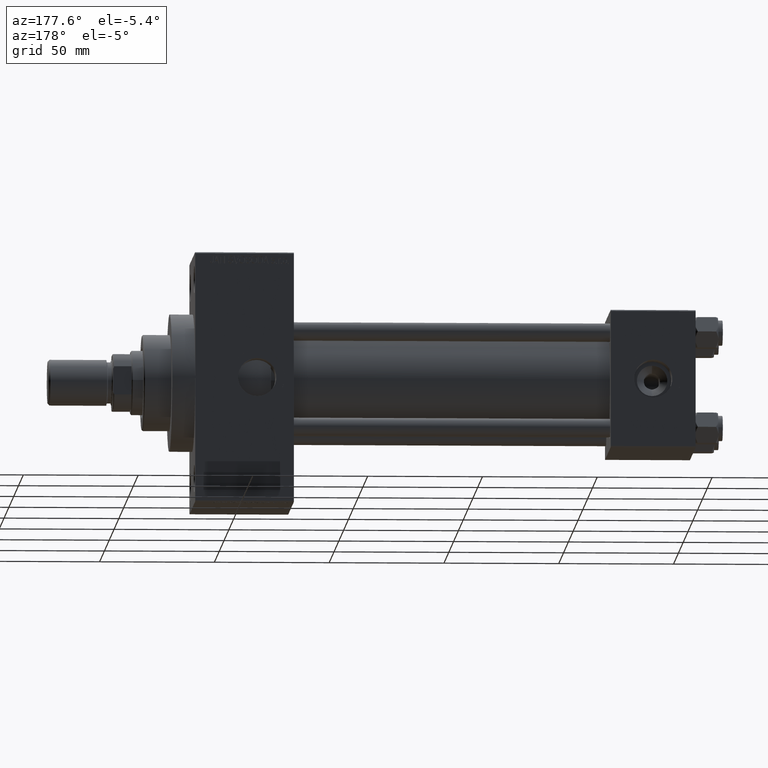
[diagram: clean part render]
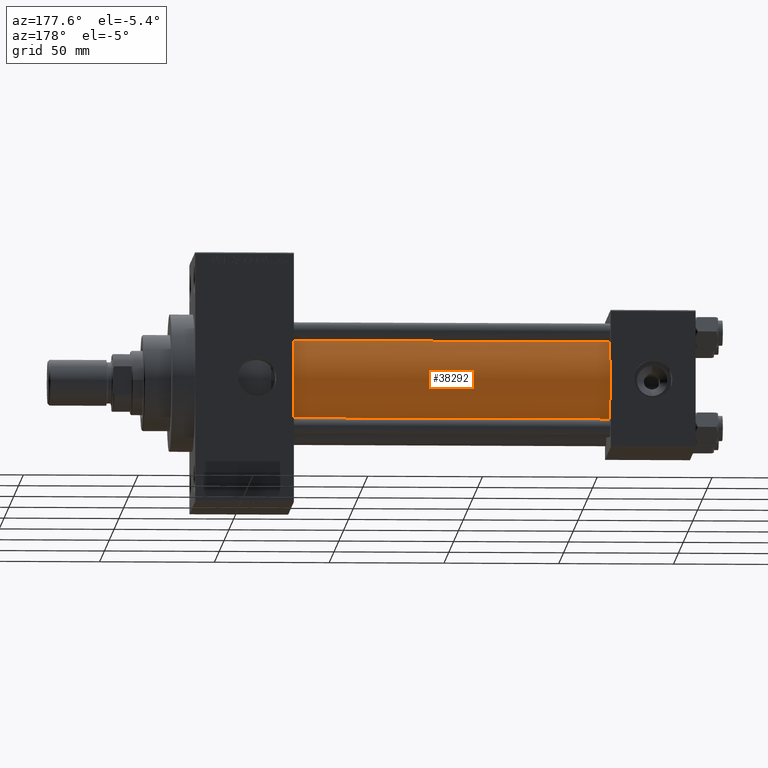
[diagram: same view with one face highlighted and labeled with its STEP entity id]
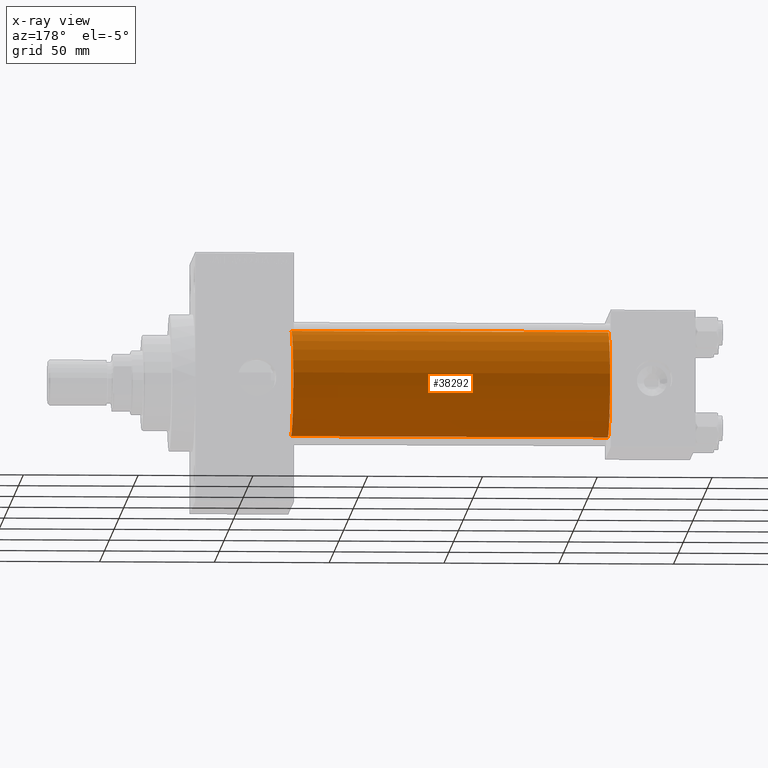
[diagram: x-ray of the same camera — body ghosted, the highlighted face saturated]
A machine part, auxiliary view. The second image highlights one B-rep face of the part: STEP entity #38292.
The next image is the same camera in x-ray: the body ghosted, the highlighted face saturated — about 0% of this face is hidden behind the body in this view.
In plain terms, the highlighted cylindrical surface (partial cylindrical patch) has radius 23 mm, axis along (-1, -0, -0).
Its self-contained STEP definition (entity closure, byte-faithful):
#564 = ORIENTED_EDGE ( 'NONE', *, *, #14989, .F. ) ;
#1249 = DIRECTION ( 'NONE',  ( 0.000000000000000000, 0.000000000000000000, 1.000000000000000000 ) ) ;
#1584 = VERTEX_POINT ( 'NONE', #5989 ) ;
#2489 = CARTESIAN_POINT ( 'NONE',  ( 175.0000000000000284, 2.146024240737016609E-16, -23.00000000000000000 ) ) ;
#4187 = EDGE_CURVE ( 'NONE', #33657, #1584, #12981, .T. ) ;
#4835 = DIRECTION ( 'NONE',  ( 1.000000000000000000, -0.000000000000000000, 0.000000000000000000 ) ) ;
#5989 = CARTESIAN_POINT ( 'NONE',  ( 37.00000000000000711, -2.602085213965210642E-15, 23.00000000000000000 ) ) ;
#8870 = DIRECTION ( 'NONE',  ( -1.000000000000000000, -0.000000000000000000, -0.000000000000000000 ) ) ;
#10620 = ORIENTED_EDGE ( 'NONE', *, *, #13678, .T. ) ;
#12490 = VECTOR ( 'NONE', #42279, 1000.000000000000000 ) ;
#12981 = CIRCLE ( 'NONE', #39941, 23.00000000000000000 ) ;
#13678 = EDGE_CURVE ( 'NONE', #41321, #33657, #31906, .T. ) ;
#14989 = EDGE_CURVE ( 'NONE', #41321, #23870, #44145, .T. ) ;
#15848 = CARTESIAN_POINT ( 'NONE',  ( 175.0000000000000284, -2.602085213965210642E-15, 0.000000000000000000 ) ) ;
#19436 = EDGE_LOOP ( 'NONE', ( #564, #10620, #43869, #44601 ) ) ;
#19731 = CARTESIAN_POINT ( 'NONE',  ( 37.00000000000000711, 2.146024240737016609E-16, -23.00000000000000000 ) ) ;
#19804 = DIRECTION ( 'NONE',  ( -1.000000000000000000, -0.000000000000000000, -0.000000000000000000 ) ) ;
#20039 = CARTESIAN_POINT ( 'NONE',  ( 175.0000000000000284, -2.602085213965210642E-15, 0.000000000000000000 ) ) ;
#22581 = CARTESIAN_POINT ( 'NONE',  ( 175.0000000000000284, -2.602085213965210642E-15, 23.00000000000000000 ) ) ;
#23325 = AXIS2_PLACEMENT_3D ( 'NONE', #15848, #33693, #26702 ) ;
#23608 = CARTESIAN_POINT ( 'NONE',  ( 37.00000000000000711, -2.602085213965210642E-15, 0.000000000000000000 ) ) ;
#23870 = VERTEX_POINT ( 'NONE', #22581 ) ;
#26702 = DIRECTION ( 'NONE',  ( 0.000000000000000000, 0.000000000000000000, -1.000000000000000000 ) ) ;
#30646 = EDGE_CURVE ( 'NONE', #23870, #1584, #38291, .T. ) ;
#31906 = LINE ( 'NONE', #2489, #12490 ) ;
#33657 = VERTEX_POINT ( 'NONE', #19731 ) ;
#33693 = DIRECTION ( 'NONE',  ( 1.000000000000000000, 0.000000000000000000, 0.000000000000000000 ) ) ;
#35007 = CYLINDRICAL_SURFACE ( 'NONE', #43998, 23.00000000000000000 ) ;
#38153 = FACE_OUTER_BOUND ( 'NONE', #19436, .T. ) ;
#38291 = LINE ( 'NONE', #41907, #46142 ) ;
#38292 = ADVANCED_FACE ( 'NONE', ( #38153 ), #35007, .T. ) ;
#39941 = AXIS2_PLACEMENT_3D ( 'NONE', #23608, #4835, #41009 ) ;
#41009 = DIRECTION ( 'NONE',  ( 0.000000000000000000, 0.000000000000000000, 1.000000000000000000 ) ) ;
#41321 = VERTEX_POINT ( 'NONE', #41660 ) ;
#41660 = CARTESIAN_POINT ( 'NONE',  ( 175.0000000000000284, 2.146024240737016609E-16, -23.00000000000000000 ) ) ;
#41907 = CARTESIAN_POINT ( 'NONE',  ( 175.0000000000000284, -2.602085213965210642E-15, 23.00000000000000000 ) ) ;
#42279 = DIRECTION ( 'NONE',  ( -1.000000000000000000, -0.000000000000000000, -0.000000000000000000 ) ) ;
#43869 = ORIENTED_EDGE ( 'NONE', *, *, #4187, .T. ) ;
#43998 = AXIS2_PLACEMENT_3D ( 'NONE', #20039, #19804, #1249 ) ;
#44145 = CIRCLE ( 'NONE', #23325, 23.00000000000000000 ) ;
#44601 = ORIENTED_EDGE ( 'NONE', *, *, #30646, .F. ) ;
#46142 = VECTOR ( 'NONE', #8870, 1000.000000000000000 ) ;